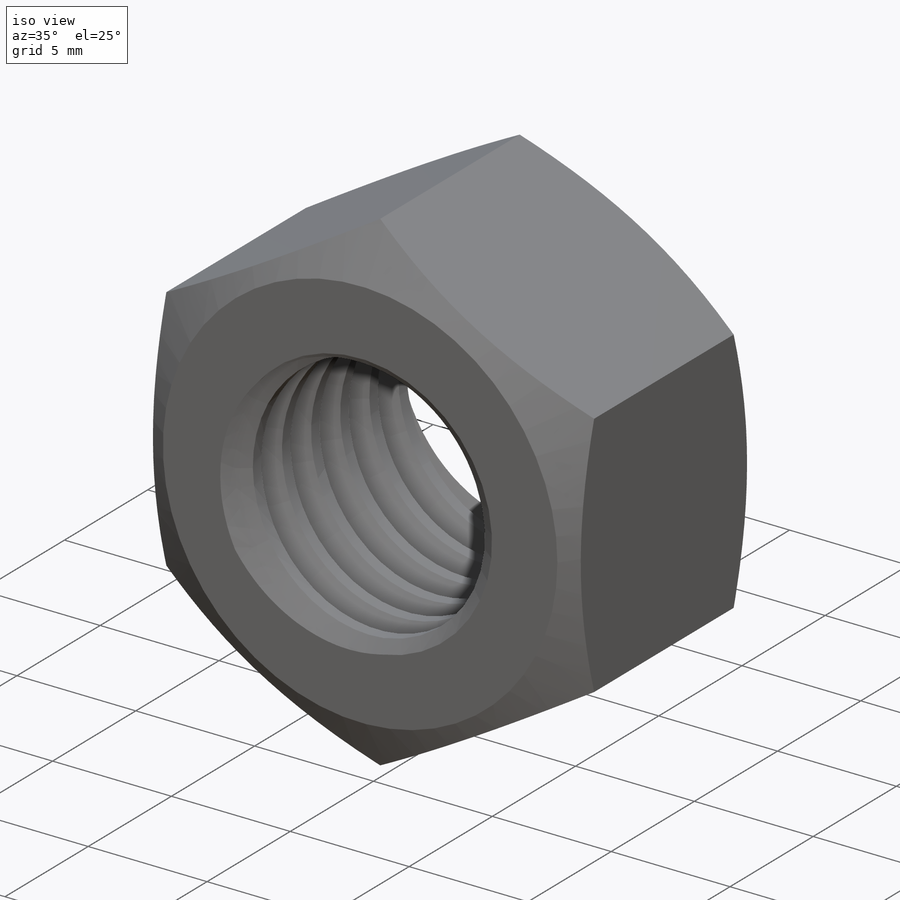
[diagram: iso view]
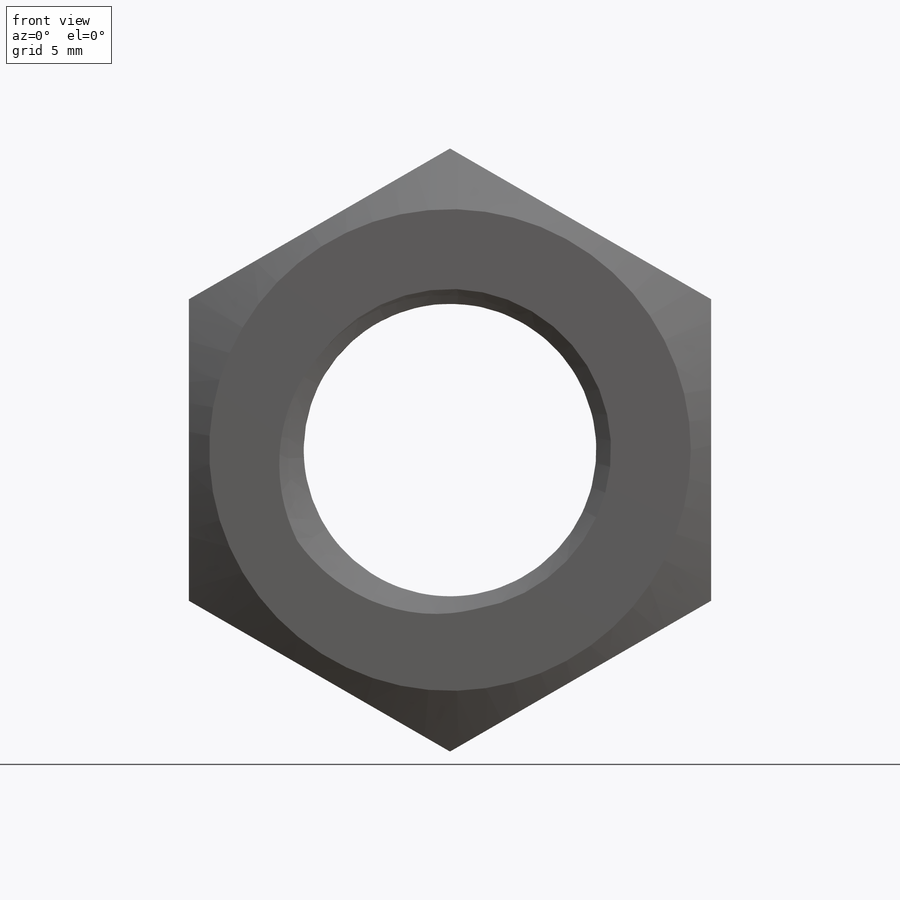
[diagram: front view]
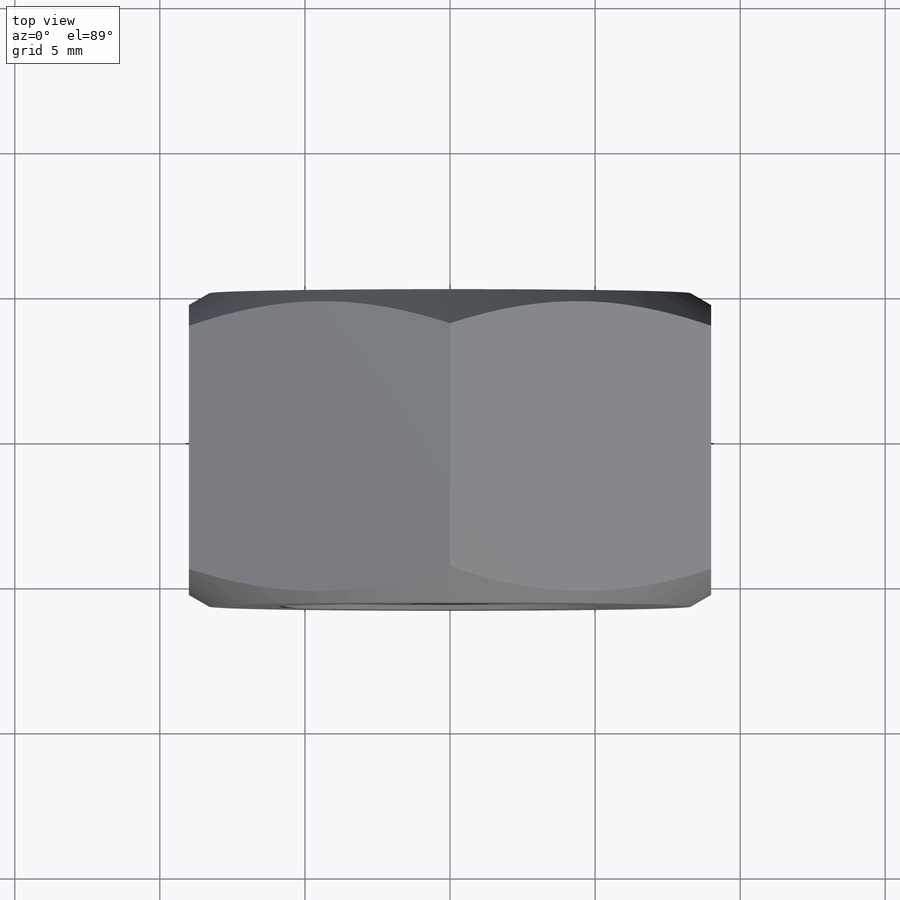
[diagram: top view]
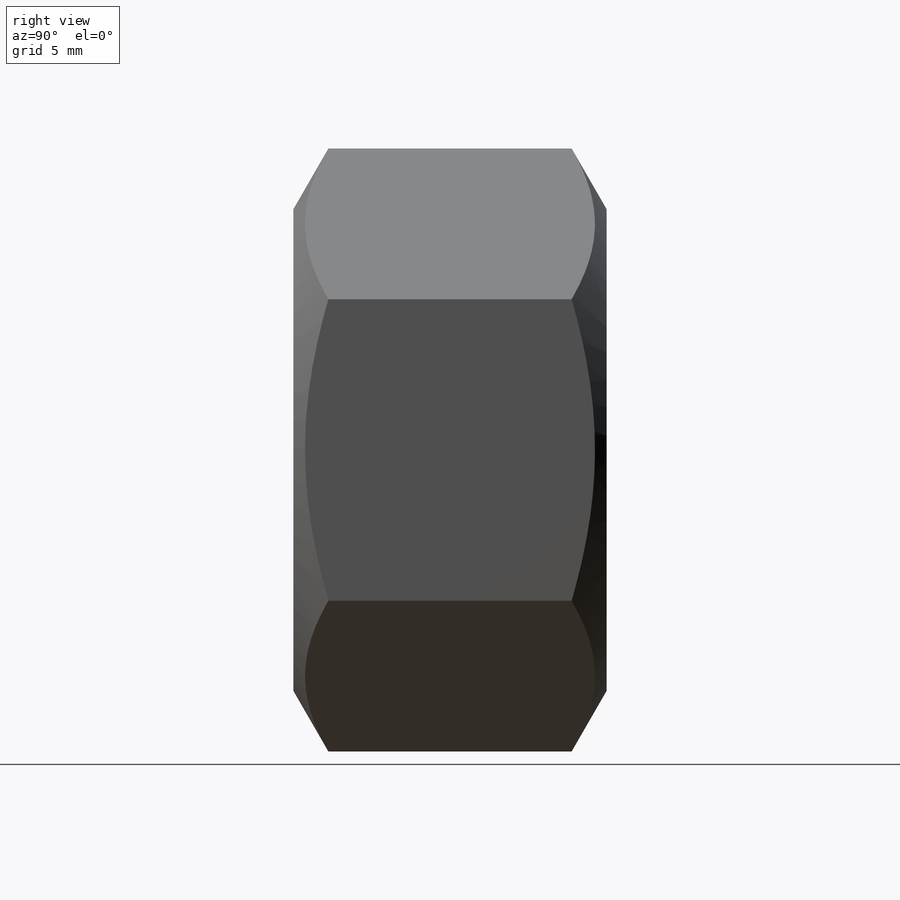
[diagram: right view]
SOLIDWORKS PART (.sldprt)
format: sldprt  version: not decoded by parser v0  size: 377,856 bytes
history: native  units: mm
features: sketch x5, plane x3, cut_extrude x2, material x1, extrude x1, chamfer x1, helix x1, sweep x1 (+9 scaffold rows collapsed)
feature tree (24):
  scaffold x9  (default folders/planes/origin — collapsed)
  material  "Materiał <nieokreślony>"
  plane  "Płaszczyzna przednia"
  plane  "Płaszczyzna górna"
  plane  "Płaszczyzna prawa"
  sketch  "Szkic1"  dims[D1=10.1mm D2=18.0mm]
  extrude  "Dodanie-wyciągnięcie1"  Depth=10.8mm
  sketch  "Szkic2"  dims[D1=~7.417974mm]
  cut_extrude  "Wytnij-wyciągnięcie1"  [1 undecoded]
  sketch  "Szkic3"  dims[D1=~7.178144mm]
  cut_extrude  "Wytnij-wyciągnięcie3"  [1 undecoded]
  chamfer  "Sfazowanie2"  Distance=0.5mm Angle=30deg
  sketch  "Szkic5"  dims[D1=~6.055453mm]
  helix  "Helisa/Spirala1"  Pitch=13mm
  sketch  "Szkic9"  dims[c1.D1=2.15mm c1.D2=1.6mm c1.D3=5.05mm c2.D2=1.6mm]
  sweep  "Wycięcie-wyciągnięcie po ścieżce4"
decode coverage: 8 of 11 modeling features carry decoded parameters
note: ~ marks probable driven/reference dimensions
note: 2 parameter values undecoded
note: suppression state not decoded; provenance and decode notes live in map.json
